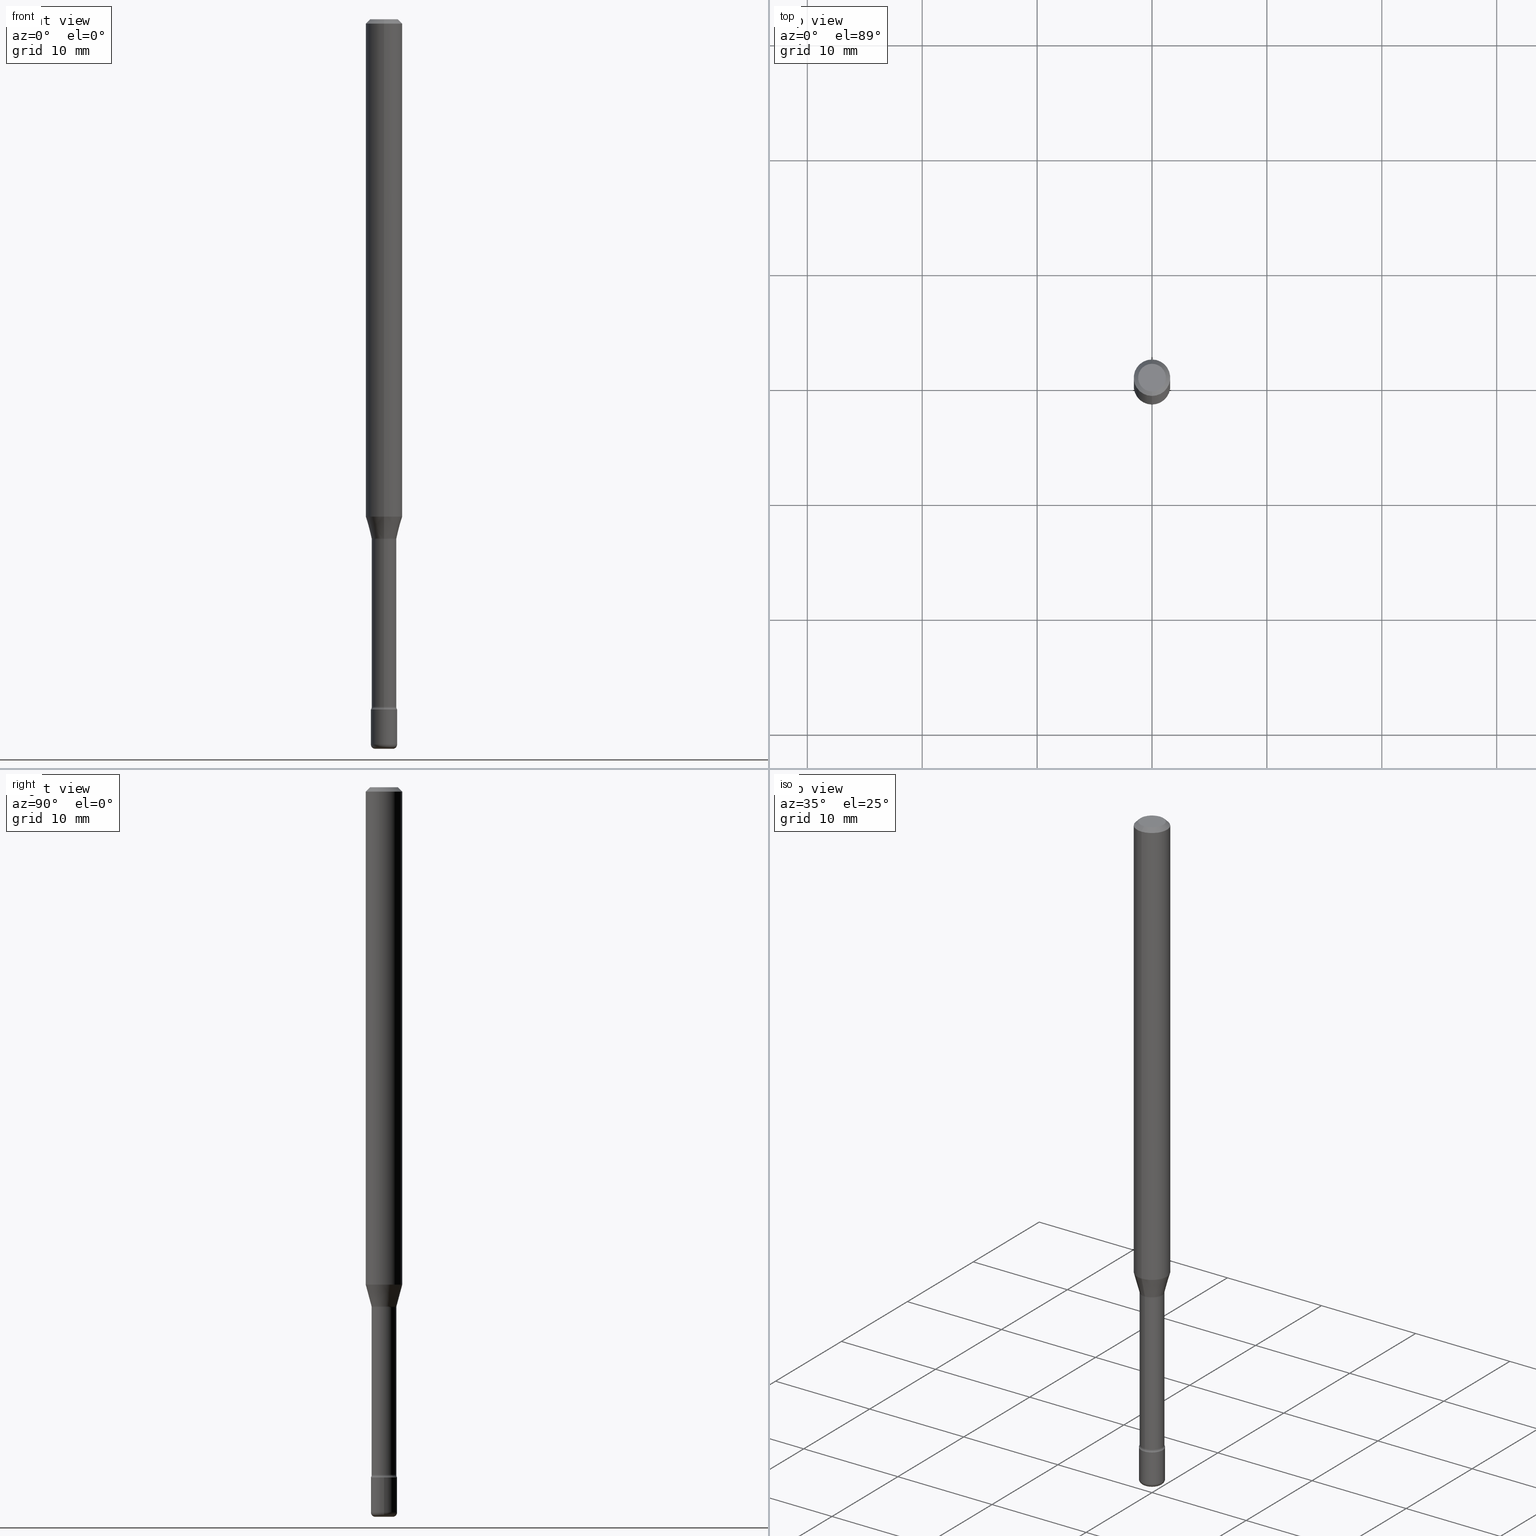
[diagram: canonical four-view strip — front | top / right | iso, engineering-drawing reading convention]
A machine part, canonical four-view strip (front | top / right | iso — engineering-drawing reading convention). The complete STEP part file that produces these views, byte-faithful:
ISO-10303-21;
HEADER;
FILE_DESCRIPTION (( 'STEP AP203' ),
    '1' );
FILE_NAME ('08855.STEP',
    '2024-03-06T20:06:03',
    ( '' ),
    ( '' ),
    'SwSTEP 2.0',
    'SolidWorks 2023',
    '' );
FILE_SCHEMA (( 'CONFIG_CONTROL_DESIGN' ));
ENDSEC;

DATA;
#1 = CARTESIAN_POINT ( 'NONE',  ( -4.364351673553912750E-16, -0.06250000000000005551, -0.01499999999999981036 ) ) ;
#2 = PRODUCT_DEFINITION ( 'UNKNOWN', '', #264, #32 ) ;
#3 = EDGE_LOOP ( 'NONE', ( #432, #184, #14, #351 ) ) ;
#4 = CIRCLE ( 'NONE', #161, 0.04281111260566398957 ) ;
#5 = ORIENTED_EDGE ( 'NONE', *, *, #429, .T. ) ;
#6 = CARTESIAN_POINT ( 'NONE',  ( 0.000000000000000000, 0.000000000000000000, 0.000000000000000000 ) ) ;
#7 = DIRECTION ( 'NONE',  ( -6.982962677686265133E-15, -1.000000000000000000, 3.491562882129239866E-15 ) ) ;
#8 = ORIENTED_EDGE ( 'NONE', *, *, #134, .F. ) ;
#9 = FACE_OUTER_BOUND ( 'NONE', #570, .T. ) ;
#10 = CYLINDRICAL_SURFACE ( 'NONE', #326, 0.04230000000000001120 ) ;
#11 = VECTOR ( 'NONE', #155, 39.37007874015748143 ) ;
#12 = CIRCLE ( 'NONE', #235, 0.01500000000000040364 ) ;
#13 = ADVANCED_FACE ( 'NONE', ( #154 ), #329, .T. ) ;
#14 = ORIENTED_EDGE ( 'NONE', *, *, #557, .T. ) ;
#15 = DIRECTION ( 'NONE',  ( -6.982962677686265133E-15, -1.000000000000000000, 3.491562882129241838E-15 ) ) ;
#16 = COORDINATED_UNIVERSAL_TIME_OFFSET ( 5, 0, .BEHIND. ) ;
#17 = DIRECTION ( 'NONE',  ( -2.445411864812793917E-29, 3.491562882129241838E-15, 1.000000000000000000 ) ) ;
#18 = DIRECTION ( 'NONE',  ( 1.839019923739602287E-15, 0.2588190451025252359, 0.9659258262890670910 ) ) ;
#19 = DIRECTION ( 'NONE',  ( -2.445411864812793917E-29, 3.491562882129241838E-15, 1.000000000000000000 ) ) ;
#20 = CARTESIAN_POINT ( 'NONE',  ( 5.783533726627847872E-29, -8.257353366364040046E-15, -2.365000000000000213 ) ) ;
#21 = AXIS2_PLACEMENT_3D ( 'NONE', #25, #546, #210 ) ;
#22 = VECTOR ( 'NONE', #463, 39.37007874015748854 ) ;
#23 = LENGTH_MEASURE_WITH_UNIT ( LENGTH_MEASURE( 0.02539999999999999897 ), #501 );
#24 = DIRECTION ( 'NONE',  ( -6.982962677686265922E-15, -1.000000000000000000, 3.491562882129242627E-15 ) ) ;
#25 = CARTESIAN_POINT ( 'NONE',  ( 4.348168500605261643E-29, -6.208321780232765587E-15, -1.778092501787273294 ) ) ;
#26 = ADVANCED_FACE ( 'NONE', ( #226 ), #361, .F. ) ;
#27 = DIRECTION ( 'NONE',  ( -2.445468806185136597E-29, 3.491481338843145583E-15, 1.000000000000000000 ) ) ;
#28 = CARTESIAN_POINT ( 'NONE',  ( 5.783399060282257641E-29, -8.257546216235657656E-15, -2.365000000000000213 ) ) ;
#29 = EDGE_CURVE ( 'NONE', #31, #567, #513, .T. ) ;
#30 = CIRCLE ( 'NONE', #188, 0.04500000000000000527 ) ;
#31 = VERTEX_POINT ( 'NONE', #562 ) ;
#32 = DESIGN_CONTEXT ( 'detailed design', #214, 'design' ) ;
#33 = DIRECTION ( 'NONE',  ( -6.982962677686265922E-15, -1.000000000000000000, 4.370956789862821150E-15 ) ) ;
#34 = DIRECTION ( 'NONE',  ( -6.982962677686265922E-15, -1.000000000000000000, 3.483106191921935554E-15 ) ) ;
#35 = ORIENTED_EDGE ( 'NONE', *, *, #144, .F. ) ;
#36 = DIRECTION ( 'NONE',  ( -2.445468806185136597E-29, 3.491481338843145583E-15, 1.000000000000000000 ) ) ;
#37 =( GEOMETRIC_REPRESENTATION_CONTEXT ( 3 ) GLOBAL_UNCERTAINTY_ASSIGNED_CONTEXT ( ( #78 ) ) GLOBAL_UNIT_ASSIGNED_CONTEXT ( ( #116, #159, #209 ) ) REPRESENTATION_CONTEXT ( 'NONE', 'WORKASPACE' ) );
#38 = AXIS2_PLACEMENT_3D ( 'NONE', #124, #303, #79 ) ;
#39 = LOCAL_TIME ( 15, 6, 3.000000000000000000, #540 ) ;
#40 = EDGE_LOOP ( 'NONE', ( #83, #522, #200, #194 ) ) ;
#41 = ORIENTED_EDGE ( 'NONE', *, *, #356, .T. ) ;
#42 = DIRECTION ( 'NONE',  ( -6.982962677686265922E-15, -1.000000000000000000, 3.491562882129242627E-15 ) ) ;
#43 = DIRECTION ( 'NONE',  ( -2.445411864812793917E-29, 3.491562882129241838E-15, 1.000000000000000000 ) ) ;
#44 = ORIENTED_EDGE ( 'NONE', *, *, #276, .T. ) ;
#45 = ADVANCED_FACE ( 'NONE', ( #182 ), #176, .T. ) ;
#46 = DIRECTION ( 'NONE',  ( 1.000000000000000000, -6.982962677686245411E-15, 0.000000000000000000 ) ) ;
#47 = CIRCLE ( 'NONE', #436, 0.04500000000000000527 ) ;
#48 = ORIENTED_EDGE ( 'NONE', *, *, #121, .F. ) ;
#49 = LINE ( 'NONE', #530, #256 ) ;
#50 = VERTEX_POINT ( 'NONE', #139 ) ;
#51 = ORIENTED_EDGE ( 'NONE', *, *, #97, .T. ) ;
#52 = EDGE_CURVE ( 'NONE', #402, #95, #295, .T. ) ;
#53 = DIRECTION ( 'NONE',  ( -6.982962677686265922E-15, -1.000000000000000000, 3.491562882129241838E-15 ) ) ;
#54 = FACE_OUTER_BOUND ( 'NONE', #215, .T. ) ;
#55 = AXIS2_PLACEMENT_3D ( 'NONE', #500, #71, #550 ) ;
#56 = COORDINATED_UNIVERSAL_TIME_OFFSET ( 5, 0, .BEHIND. ) ;
#57 = CIRCLE ( 'NONE', #360, 0.04499999999999999833 ) ;
#58 = ORIENTED_EDGE ( 'NONE', *, *, #547, .F. ) ;
#59 = DIRECTION ( 'NONE',  ( 1.000000000000000000, 0.000000000000000000, 0.000000000000000000 ) ) ;
#60 = DIRECTION ( 'NONE',  ( -6.982962677686265922E-15, -1.000000000000000000, 4.370956789862821150E-15 ) ) ;
#61 = DIRECTION ( 'NONE',  ( -2.445411864812793917E-29, 3.491562882129241838E-15, 1.000000000000000000 ) ) ;
#62 = DIRECTION ( 'NONE',  ( -2.445468806185136597E-29, 3.491481338843145583E-15, 1.000000000000000000 ) ) ;
#63 = CARTESIAN_POINT ( 'NONE',  ( -1.169113584055446105E-44, 1.669184350826100908E-30, 4.780733988912460139E-16 ) ) ;
#64 = PERSON_AND_ORGANIZATION ( #344, #152 ) ;
#65 = EDGE_CURVE ( 'NONE', #409, #50, #47, .T. ) ;
#66 = AXIS2_PLACEMENT_3D ( 'NONE', #274, #447, #271 ) ;
#67 = FACE_OUTER_BOUND ( 'NONE', #279, .T. ) ;
#68 = AXIS2_PLACEMENT_3D ( 'NONE', #261, #355, #170 ) ;
#69 = VECTOR ( 'NONE', #253, 39.37007874015748143 ) ;
#70 = CC_DESIGN_DATE_AND_TIME_ASSIGNMENT ( #498, #248, ( #293 ) ) ;
#71 = DIRECTION ( 'NONE',  ( 2.445411864812793637E-29, -3.491562882129241838E-15, -1.000000000000000000 ) ) ;
#72 = CARTESIAN_POINT ( 'NONE',  ( 6.076989983370064174E-29, -8.676331127025216680E-15, -2.484999999999999876 ) ) ;
#73 = EDGE_CURVE ( 'NONE', #77, #370, #110, .T. ) ;
#74 = DIRECTION ( 'NONE',  ( -6.982962677686265922E-15, -1.000000000000000000, 3.491562882129241838E-15 ) ) ;
#75 = FACE_OUTER_BOUND ( 'NONE', #199, .T. ) ;
#76 = APPROVAL_STATUS ( 'not_yet_approved' ) ;
#77 = VERTEX_POINT ( 'NONE', #308 ) ;
#78 = UNCERTAINTY_MEASURE_WITH_UNIT (LENGTH_MEASURE( 1.000000000000000082E-05 ), #116, 'distance_accuracy_value', 'NONE');
#79 = DIRECTION ( 'NONE',  ( 7.105427357600998703E-15, 1.000000000000000000, 0.000000000000000000 ) ) ;
#80 = DIRECTION ( 'NONE',  ( 2.438088387897960049E-29, -3.491481338843145188E-15, -1.000000000000000000 ) ) ;
#81 = AXIS2_PLACEMENT_3D ( 'NONE', #474, #36, #217 ) ;
#82 = ORIENTED_EDGE ( 'NONE', *, *, #341, .T. ) ;
#83 = ORIENTED_EDGE ( 'NONE', *, *, #552, .F. ) ;
#84 = DIRECTION ( 'NONE',  ( -2.445411864812793917E-29, 3.491562882129241838E-15, 1.000000000000000000 ) ) ;
#85 = CARTESIAN_POINT ( 'NONE',  ( 3.668117797219197392E-31, -5.237344323193873357E-17, -0.01500000000000002720 ) ) ;
#86 = ORIENTED_EDGE ( 'NONE', *, *, #557, .F. ) ;
#87 = EDGE_CURVE ( 'NONE', #31, #473, #196, .T. ) ;
#88 = CARTESIAN_POINT ( 'NONE',  ( -0.02999999999999999542, -8.463168306297186435E-15, -2.484999999999999876 ) ) ;
#89 = CC_DESIGN_APPROVAL ( #93, ( #293 ) ) ;
#90 = VECTOR ( 'NONE', #18, 39.37007874015748143 ) ;
#91 = AXIS2_PLACEMENT_3D ( 'NONE', #442, #43, #404 ) ;
#92 = EDGE_LOOP ( 'NONE', ( #480, #41, #225, #8 ) ) ;
#93 = APPROVAL ( #76, 'UNSPECIFIED' ) ;
#94 = EDGE_LOOP ( 'NONE', ( #166, #51 ) ) ;
#95 = VERTEX_POINT ( 'NONE', #172 ) ;
#96 = EDGE_CURVE ( 'NONE', #561, #473, #265, .T. ) ;
#97 = EDGE_CURVE ( 'NONE', #222, #407, #229, .T. ) ;
#98 = CARTESIAN_POINT ( 'NONE',  ( 3.668117797219197392E-31, -5.237344323193873357E-17, -0.01500000000000002720 ) ) ;
#99 = DIRECTION ( 'NONE',  ( -6.982962677686266711E-15, -1.000000000000000000, 6.458269488567998169E-15 ) ) ;
#100 = AXIS2_PLACEMENT_3D ( 'NONE', #128, #223, #571 ) ;
#101 = AXIS2_PLACEMENT_3D ( 'NONE', #422, #251, #386 ) ;
#102 = DIRECTION ( 'NONE',  ( -2.445411864812793917E-29, 3.491562882129241838E-15, 1.000000000000000000 ) ) ;
#103 = APPROVAL ( #204, 'UNSPECIFIED' ) ;
#104 = DIRECTION ( 'NONE',  ( -6.982962677686265922E-15, -1.000000000000000000, 3.491562882129241838E-15 ) ) ;
#105 = APPLICATION_PROTOCOL_DEFINITION ( 'international standard', 'config_control_design', 1994, #214 ) ;
#106 = ORIENTED_EDGE ( 'NONE', *, *, #121, .T. ) ;
#107 = DIRECTION ( 'NONE',  ( -2.445411864812793917E-29, 3.491562882129241838E-15, 1.000000000000000000 ) ) ;
#108 = DATE_AND_TIME ( #377, #140 ) ;
#109 = LINE ( 'NONE', #468, #90 ) ;
#110 = CIRCLE ( 'NONE', #38, 0.01500000000000001853 ) ;
#111 = PERSON_AND_ORGANIZATION_ROLE ( 'creator' ) ;
#112 = DIRECTION ( 'NONE',  ( -6.982962677686266711E-15, -1.000000000000000000, 6.458269488567998169E-15 ) ) ;
#113 = DIRECTION ( 'NONE',  ( -2.445411864812793917E-29, 3.491562882129241838E-15, 1.000000000000000000 ) ) ;
#114 = APPLICATION_CONTEXT ( 'configuration controlled 3d designs of mechanical parts and assemblies' ) ;
#115 = CARTESIAN_POINT ( 'NONE',  ( 6.113672015462842613E-29, -8.728703347107864943E-15, -2.500000000000000000 ) ) ;
#116 =( CONVERSION_BASED_UNIT ( 'INCH', #23 ) LENGTH_UNIT ( ) NAMED_UNIT ( #455 ) );
#117 = APPROVAL_PERSON_ORGANIZATION ( #421, #93, #389 ) ;
#118 = CARTESIAN_POINT ( 'NONE',  ( 4.364351673553919652E-16, 0.06249999999999995143, -0.01500000000000024578 ) ) ;
#119 = AXIS2_PLACEMENT_3D ( 'NONE', #301, #470, #74 ) ;
#120 = EDGE_CURVE ( 'NONE', #396, #354, #309, .T. ) ;
#121 = EDGE_CURVE ( 'NONE', #357, #478, #517, .T. ) ;
#122 = DIRECTION ( 'NONE',  ( 1.000000000000000000, -6.982962677686237523E-15, 0.000000000000000000 ) ) ;
#123 = ORIENTED_EDGE ( 'NONE', *, *, #459, .T. ) ;
#124 = CARTESIAN_POINT ( 'NONE',  ( 4.071409875905951183E-16, 0.05729999999999178806, -2.356414547187247965 ) ) ;
#125 = FACE_OUTER_BOUND ( 'NONE', #268, .T. ) ;
#126 = ORIENTED_EDGE ( 'NONE', *, *, #29, .F. ) ;
#127 = EDGE_LOOP ( 'NONE', ( #311, #405, #132, #529 ) ) ;
#128 = CARTESIAN_POINT ( 'NONE',  ( 4.348168500605261643E-29, -6.208321780232765587E-15, -1.778092501787273294 ) ) ;
#129 = PRODUCT_RELATED_PRODUCT_CATEGORY ( 'detail', '', ( #186 ) ) ;
#130 = DIRECTION ( 'NONE',  ( -2.445411864812793917E-29, 3.491562882129241838E-15, 1.000000000000000000 ) ) ;
#131 = AXIS2_PLACEMENT_3D ( 'NONE', #296, #252, #324 ) ;
#132 = ORIENTED_EDGE ( 'NONE', *, *, #348, .F. ) ;
#133 = DIRECTION ( 'NONE',  ( -2.445468806185136597E-29, 3.491481338843145583E-15, 1.000000000000000000 ) ) ;
#134 = EDGE_CURVE ( 'NONE', #50, #407, #411, .T. ) ;
#135 = ORIENTED_EDGE ( 'NONE', *, *, #511, .T. ) ;
#136 = CARTESIAN_POINT ( 'NONE',  ( -4.287811248607203282E-16, -0.06250000000000005551, -0.01499999999999981036 ) ) ;
#137 = CC_DESIGN_PERSON_AND_ORGANIZATION_ASSIGNMENT ( #375, #452, ( #2 ) ) ;
#138 = ORIENTED_EDGE ( 'NONE', *, *, #144, .T. ) ;
#139 = CARTESIAN_POINT ( 'NONE',  ( 0.04500000000000019956, -8.990564447521098367E-15, -2.484999999999999876 ) ) ;
#140 = LOCAL_TIME ( 15, 6, 3.000000000000000000, #56 ) ;
#141 = VECTOR ( 'NONE', #238, 39.37007874015748143 ) ;
#142 = CARTESIAN_POINT ( 'NONE',  ( -3.773273898774340269E-16, -0.04750000000000000749, 1.387639230100891162E-16 ) ) ;
#143 = ORIENTED_EDGE ( 'NONE', *, *, #52, .T. ) ;
#144 = EDGE_CURVE ( 'NONE', #259, #473, #333, .T. ) ;
#145 = CARTESIAN_POINT ( 'NONE',  ( -0.02999999999999999542, -8.436063711156501822E-15, -2.500000000000000000 ) ) ;
#146 = EDGE_LOOP ( 'NONE', ( #187, #126, #392, #467 ) ) ;
#147 = DIRECTION ( 'NONE',  ( 1.000000000000000000, -6.982962677686270655E-15, 4.883557194083114022E-29 ) ) ;
#148 = CARTESIAN_POINT ( 'NONE',  ( 3.741402302838848194E-16, 0.04281111260565777926, -1.778092501787273516 ) ) ;
#149 = TOROIDAL_SURFACE ( 'NONE', #434, 0.05730000000000001759, 0.01500000000000001506 ) ;
#150 = EDGE_LOOP ( 'NONE', ( #263, #44, #363, #86 ) ) ;
#151 = DIRECTION ( 'NONE',  ( 1.000000000000000000, -6.982962677686209124E-15, 0.000000000000000000 ) ) ;
#152 = ORGANIZATION ( 'UNSPECIFIED', 'UNSPECIFIED', '' ) ;
#153 = DIRECTION ( 'NONE',  ( -6.982962677686265922E-15, -1.000000000000000000, 3.491562882129241838E-15 ) ) ;
#154 = FACE_OUTER_BOUND ( 'NONE', #40, .T. ) ;
#155 = DIRECTION ( 'NONE',  ( -2.445468806185136877E-29, 3.491481338843145188E-15, 1.000000000000000000 ) ) ;
#156 = CALENDAR_DATE ( 2024, 6, 3 ) ;
#157 = ADVANCED_FACE ( 'NONE', ( #9 ), #488, .F. ) ;
#158 = DIRECTION ( 'NONE',  ( 1.000000000000000000, -7.105427357601001070E-15, 4.926316507159325352E-29 ) ) ;
#159 =( NAMED_UNIT ( * ) PLANE_ANGLE_UNIT ( ) SI_UNIT ( $, .RADIAN. ) );
#160 = ADVANCED_FACE ( 'NONE', ( #330 ), #566, .T. ) ;
#161 = AXIS2_PLACEMENT_3D ( 'NONE', #367, #189, #487 ) ;
#162 = CALENDAR_DATE ( 2024, 6, 3 ) ;
#163 = DIRECTION ( 'NONE',  ( 1.000000000000000000, -6.982962677686266711E-15, 4.876176775795935793E-29 ) ) ;
#164 = DATE_AND_TIME ( #156, #39 ) ;
#165 = AXIS2_PLACEMENT_3D ( 'NONE', #174, #427, #298 ) ;
#166 = ORIENTED_EDGE ( 'NONE', *, *, #201, .T. ) ;
#167 = DIRECTION ( 'NONE',  ( 1.000000000000000000, -6.982962677686245411E-15, 0.000000000000000000 ) ) ;
#168 = DIRECTION ( 'NONE',  ( -6.982962677686265133E-15, -1.000000000000000000, 6.070773319253918263E-15 ) ) ;
#169 = APPROVAL_DATE_TIME ( #262, #93 ) ;
#170 = DIRECTION ( 'NONE',  ( 1.000000000000000000, -6.982962677686269077E-15, 0.000000000000000000 ) ) ;
#171 = ORIENTED_EDGE ( 'NONE', *, *, #438, .T. ) ;
#172 = CARTESIAN_POINT ( 'NONE',  ( 4.440892098501044258E-16, 0.06249999999999408112, -1.704612573687109389 ) ) ;
#173 = CC_DESIGN_APPROVAL ( #368, ( #264 ) ) ;
#174 = CARTESIAN_POINT ( 'NONE',  ( 5.783399060282257641E-29, -8.257546216235657656E-15, -2.365000000000000213 ) ) ;
#175 = ADVANCED_FACE ( 'NONE', ( #543 ), #414, .T. ) ;
#176 = CONICAL_SURFACE ( 'NONE', #464, 0.06250000000000000000, 0.7853981633974480570 ) ;
#177 = CIRCLE ( 'NONE', #564, 0.02999999999999999542 ) ;
#178 = ORIENTED_EDGE ( 'NONE', *, *, #528, .F. ) ;
#179 = DIRECTION ( 'NONE',  ( -6.982962677686267499E-15, -1.000000000000000000, 0.000000000000000000 ) ) ;
#180 = CC_DESIGN_DATE_AND_TIME_ASSIGNMENT ( #108, #206, ( #2 ) ) ;
#181 = ORIENTED_EDGE ( 'NONE', *, *, #304, .F. ) ;
#182 = FACE_OUTER_BOUND ( 'NONE', #190, .T. ) ;
#183 = ADVANCED_FACE ( 'NONE', ( #536 ), #514, .T. ) ;
#184 = ORIENTED_EDGE ( 'NONE', *, *, #358, .T. ) ;
#185 = EDGE_CURVE ( 'NONE', #259, #535, #345, .T. ) ;
#186 = PRODUCT ( '08855', '08855', '', ( #198 ) ) ;
#187 = ORIENTED_EDGE ( 'NONE', *, *, #193, .F. ) ;
#188 = AXIS2_PLACEMENT_3D ( 'NONE', #394, #278, #46 ) ;
#189 = DIRECTION ( 'NONE',  ( -2.445411864812793917E-29, 3.491562882129241838E-15, 1.000000000000000000 ) ) ;
#190 = EDGE_LOOP ( 'NONE', ( #48, #285, #228, #171 ) ) ;
#191 = DIRECTION ( 'NONE',  ( -6.982962677686266711E-15, -1.000000000000000000, 3.491481338843145583E-15 ) ) ;
#192 = DIRECTION ( 'NONE',  ( -2.445468806185136597E-29, 3.491481338843145583E-15, 1.000000000000000000 ) ) ;
#193 = EDGE_CURVE ( 'NONE', #567, #561, #317, .T. ) ;
#194 = ORIENTED_EDGE ( 'NONE', *, *, #438, .F. ) ;
#195 = DIRECTION ( 'NONE',  ( -2.445411864812793917E-29, 3.491562882129241838E-15, 1.000000000000000000 ) ) ;
#196 = CIRCLE ( 'NONE', #504, 0.01500000000000002720 ) ;
#197 = TOROIDAL_SURFACE ( 'NONE', #267, 0.02999999999999999542, 0.01500000000000040364 ) ;
#198 = MECHANICAL_CONTEXT ( 'NONE', #114, 'mechanical' ) ;
#199 = EDGE_LOOP ( 'NONE', ( #123, #398 ) ) ;
#200 = ORIENTED_EDGE ( 'NONE', *, *, #528, .T. ) ;
#201 = EDGE_CURVE ( 'NONE', #407, #222, #57, .T. ) ;
#202 = CARTESIAN_POINT ( 'NONE',  ( -2.953793212660856168E-16, -0.04230000000000624233, -1.781974787463810994 ) ) ;
#203 = DIRECTION ( 'NONE',  ( -2.445411864812793637E-29, 3.491562882129241838E-15, 1.000000000000000000 ) ) ;
#204 = APPROVAL_STATUS ( 'not_yet_approved' ) ;
#205 = CARTESIAN_POINT ( 'NONE',  ( 3.668117797219197392E-31, -5.237344323193873357E-17, -0.01500000000000002720 ) ) ;
#206 = DATE_TIME_ROLE ( 'creation_date' ) ;
#207 = VECTOR ( 'NONE', #61, 39.37007874015748143 ) ;
#208 = AXIS2_PLACEMENT_3D ( 'NONE', #496, #158, #299 ) ;
#209 =( NAMED_UNIT ( * ) SI_UNIT ( $, .STERADIAN. ) SOLID_ANGLE_UNIT ( ) );
#210 = DIRECTION ( 'NONE',  ( -6.982962677686265133E-15, -1.000000000000000000, 6.381165607227957288E-15 ) ) ;
#211 = AXIS2_PLACEMENT_3D ( 'NONE', #85, #219, #34 ) ;
#212 = ORIENTED_EDGE ( 'NONE', *, *, #552, .T. ) ;
#213 = CARTESIAN_POINT ( 'NONE',  ( -2.989484015155321567E-16, -0.04281111260567019294, -1.778092501787273072 ) ) ;
#214 = APPLICATION_CONTEXT ( 'configuration controlled 3d designs of mechanical parts and assemblies' ) ;
#215 = EDGE_LOOP ( 'NONE', ( #260, #490, #138, #509 ) ) ;
#216 = ORIENTED_EDGE ( 'NONE', *, *, #300, .F. ) ;
#217 = DIRECTION ( 'NONE',  ( 1.000000000000000000, -6.982962677686237523E-15, 0.000000000000000000 ) ) ;
#218 = CIRCLE ( 'NONE', #479, 0.06250000000000000000 ) ;
#219 = DIRECTION ( 'NONE',  ( -2.445411864812793917E-29, 3.491562882129241838E-15, 1.000000000000000000 ) ) ;
#220 = AXIS2_PLACEMENT_3D ( 'NONE', #313, #84, #33 ) ;
#221 = LOCAL_TIME ( 15, 6, 3.000000000000000000, #544 ) ;
#222 = VERTEX_POINT ( 'NONE', #336 ) ;
#223 = DIRECTION ( 'NONE',  ( -2.445411864812793917E-29, 3.491562882129241838E-15, 1.000000000000000000 ) ) ;
#224 = ADVANCED_FACE ( 'NONE', ( #340 ), #548, .T. ) ;
#225 = ORIENTED_EDGE ( 'NONE', *, *, #201, .F. ) ;
#226 = FACE_OUTER_BOUND ( 'NONE', #418, .T. ) ;
#227 = DIRECTION ( 'NONE',  ( -6.982962677686265922E-15, -1.000000000000000000, 3.483106191921935554E-15 ) ) ;
#228 = ORIENTED_EDGE ( 'NONE', *, *, #242, .T. ) ;
#229 = CIRCLE ( 'NONE', #68, 0.04499999999999999833 ) ;
#230 = CARTESIAN_POINT ( 'NONE',  ( -0.04500000000000019956, -8.356586895933170524E-15, -2.484999999999999876 ) ) ;
#231 = EDGE_CURVE ( 'NONE', #95, #402, #542, .T. ) ;
#232 = CARTESIAN_POINT ( 'NONE',  ( 5.762404092109162712E-29, -8.227569567868378496E-15, -2.356414547187247521 ) ) ;
#233 = FACE_OUTER_BOUND ( 'NONE', #94, .T. ) ;
#234 = ORIENTED_EDGE ( 'NONE', *, *, #341, .F. ) ;
#235 = AXIS2_PLACEMENT_3D ( 'NONE', #327, #191, #151 ) ;
#236 = CARTESIAN_POINT ( 'NONE',  ( 4.440892098501046230E-16, 0.06249999999999995143, -0.01500000000000024578 ) ) ;
#237 = AXIS2_PLACEMENT_3D ( 'NONE', #28, #555, #168 ) ;
#238 = DIRECTION ( 'NONE',  ( -4.851104656540962697E-15, -0.7071067811865497932, -0.7071067811865452413 ) ) ;
#239 = APPROVAL_STATUS ( 'not_yet_approved' ) ;
#240 = CYLINDRICAL_SURFACE ( 'NONE', #446, 0.06250000000000000000 ) ;
#241 = ORIENTED_EDGE ( 'NONE', *, *, #569, .T. ) ;
#242 = EDGE_CURVE ( 'NONE', #270, #443, #376, .T. ) ;
#243 = DIRECTION ( 'NONE',  ( -2.445411864812793917E-29, 3.491562882129241838E-15, 1.000000000000000000 ) ) ;
#244 = DIRECTION ( 'NONE',  ( 4.937700262164546464E-15, 0.7071067811865449082, -0.7071067811865501263 ) ) ;
#245 = DATE_AND_TIME ( #537, #420 ) ;
#246 = CARTESIAN_POINT ( 'NONE',  ( 4.357662288061261093E-29, -6.221877024798788192E-15, -1.781974787463811216 ) ) ;
#247 = DIRECTION ( 'NONE',  ( -2.445411864812793917E-29, 3.491562882129241838E-15, 1.000000000000000000 ) ) ;
#248 = DATE_TIME_ROLE ( 'classification_date' ) ;
#249 = CC_DESIGN_PERSON_AND_ORGANIZATION_ASSIGNMENT ( #64, #495, ( #264 ) ) ;
#250 = CC_DESIGN_SECURITY_CLASSIFICATION ( #293, ( #264 ) ) ;
#251 = DIRECTION ( 'NONE',  ( -1.000000000000000000, 6.982962677686265922E-15, -4.883557194083112340E-29 ) ) ;
#252 = DIRECTION ( 'NONE',  ( -2.445411864812793917E-29, 3.491562882129241838E-15, 1.000000000000000000 ) ) ;
#253 = DIRECTION ( 'NONE',  ( -2.445411864812793917E-29, 3.491562882129241838E-15, 1.000000000000000000 ) ) ;
#254 = CARTESIAN_POINT ( 'NONE',  ( 4.357662288061261093E-29, -6.221877024798788192E-15, -1.781974787463811216 ) ) ;
#255 = CLOSED_SHELL ( 'NONE', ( #224, #433, #383, #559, #347, #426 ) ) ;
#256 = VECTOR ( 'NONE', #322, 39.37007874015748143 ) ;
#257 = CARTESIAN_POINT ( 'NONE',  ( 6.076989983370064174E-29, -8.676331127025216680E-15, -2.484999999999999876 ) ) ;
#258 = ORIENTED_EDGE ( 'NONE', *, *, #364, .F. ) ;
#259 = VERTEX_POINT ( 'NONE', #539 ) ;
#260 = ORIENTED_EDGE ( 'NONE', *, *, #511, .F. ) ;
#261 = CARTESIAN_POINT ( 'NONE',  ( 5.783533726627847872E-29, -8.257353366364040046E-15, -2.365000000000000213 ) ) ;
#262 = DATE_AND_TIME ( #306, #465 ) ;
#263 = ORIENTED_EDGE ( 'NONE', *, *, #29, .T. ) ;
#264 = PRODUCT_DEFINITION_FORMATION_WITH_SPECIFIED_SOURCE ( 'ANY', '', #186, .NOT_KNOWN. ) ;
#265 = CIRCLE ( 'NONE', #352, 0.04230000000000001814 ) ;
#266 = CARTESIAN_POINT ( 'NONE',  ( 3.005595772265223596E-16, 0.04230000000000001120, 3.303802889771791252E-16 ) ) ;
#267 = AXIS2_PLACEMENT_3D ( 'NONE', #526, #277, #147 ) ;
#268 = EDGE_LOOP ( 'NONE', ( #572, #58 ) ) ;
#269 = PRODUCT_DEFINITION_SHAPE ( 'NONE', 'NONE',  #2 ) ;
#270 = VERTEX_POINT ( 'NONE', #499 ) ;
#271 = DIRECTION ( 'NONE',  ( 1.000000000000000000, -6.982962677686265922E-15, 4.876176775795935793E-29 ) ) ;
#272 = CARTESIAN_POINT ( 'NONE',  ( 5.762404092109162712E-29, -8.227569567868378496E-15, -2.356414547187247521 ) ) ;
#273 = APPROVAL_PERSON_ORGANIZATION ( #335, #103, #461 ) ;
#274 = CARTESIAN_POINT ( 'NONE',  ( 5.783533726627847872E-29, -8.257353366364040046E-15, -2.365000000000000213 ) ) ;
#275 = ORIENTED_EDGE ( 'NONE', *, *, #193, .T. ) ;
#276 = EDGE_CURVE ( 'NONE', #567, #95, #109, .T. ) ;
#277 = DIRECTION ( 'NONE',  ( -2.445468806185136597E-29, 3.491481338843145583E-15, 1.000000000000000000 ) ) ;
#278 = DIRECTION ( 'NONE',  ( -2.445468806185136597E-29, 3.491481338843145583E-15, 1.000000000000000000 ) ) ;
#279 = EDGE_LOOP ( 'NONE', ( #143, #212, #181, #178 ) ) ;
#280 = DIRECTION ( 'NONE',  ( 6.982962677686265922E-15, 1.000000000000000000, -3.483106191921935554E-15 ) ) ;
#281 = CARTESIAN_POINT ( 'NONE',  ( 0.04499999999999999833, -8.571586686859921733E-15, -2.365000000000000213 ) ) ;
#282 = EDGE_CURVE ( 'NONE', #473, #561, #532, .T. ) ;
#283 = ORIENTED_EDGE ( 'NONE', *, *, #96, .T. ) ;
#284 = AXIS2_PLACEMENT_3D ( 'NONE', #88, #395, #439 ) ;
#285 = ORIENTED_EDGE ( 'NONE', *, *, #459, .F. ) ;
#286 = CLOSED_SHELL ( 'NONE', ( #321, #175, #457, #160, #294, #183, #477, #13, #45, #538, #26, #157, #425, #441 ) ) ;
#287 = AXIS2_PLACEMENT_3D ( 'NONE', #257, #133, #527 ) ;
#288 = SECURITY_CLASSIFICATION_LEVEL ( 'unclassified' ) ;
#289 = CARTESIAN_POINT ( 'NONE',  ( 0.04499999999999999833, -3.142333204958819823E-16, 2.194279549108170967E-30 ) ) ;
#290 = APPROVAL_DATE_TIME ( #164, #103 ) ;
#291 = PERSON_AND_ORGANIZATION_ROLE ( 'design_owner' ) ;
#292 = DIRECTION ( 'NONE',  ( -2.445468806185136597E-29, 3.491481338843145583E-15, 1.000000000000000000 ) ) ;
#293 = SECURITY_CLASSIFICATION ( '', '', #288 ) ;
#294 = ADVANCED_FACE ( 'NONE', ( #67 ), #240, .T. ) ;
#295 = CIRCLE ( 'NONE', #220, 0.06250000000000000000 ) ;
#296 = CARTESIAN_POINT ( 'NONE',  ( 6.620752579593885833E-46, -9.460906030875025688E-32, -2.708531389104991304E-17 ) ) ;
#297 = AXIS2_PLACEMENT_3D ( 'NONE', #451, #195, #15 ) ;
#298 = DIRECTION ( 'NONE',  ( -6.982962677686265133E-15, -1.000000000000000000, 6.070773319253918263E-15 ) ) ;
#299 = DIRECTION ( 'NONE',  ( 7.105427357601001859E-15, 1.000000000000000000, 0.000000000000000000 ) ) ;
#300 = EDGE_CURVE ( 'NONE', #357, #270, #413, .T. ) ;
#301 = CARTESIAN_POINT ( 'NONE',  ( 4.357763756151139053E-29, -6.221731716718877342E-15, -1.781974787463811216 ) ) ;
#302 = CARTESIAN_POINT ( 'NONE',  ( 4.440892098500625669E-16, 0.06250000000000000000, 2.598507187581684484E-16 ) ) ;
#303 = DIRECTION ( 'NONE',  ( 1.000000000000000000, -7.105427357601001070E-15, 4.926316507159325352E-29 ) ) ;
#304 = EDGE_CURVE ( 'NONE', #478, #443, #406, .T. ) ;
#305 = PLANE ( 'NONE',  #387 ) ;
#306 = CALENDAR_DATE ( 2024, 6, 3 ) ;
#307 = ORIENTED_EDGE ( 'NONE', *, *, #569, .F. ) ;
#308 = CARTESIAN_POINT ( 'NONE',  ( 3.101519041593414751E-16, 0.04229999999999176780, -2.356414547187247965 ) ) ;
#309 = CIRCLE ( 'NONE', #81, 0.02999999999999999542 ) ;
#310 = ORIENTED_EDGE ( 'NONE', *, *, #519, .F. ) ;
#311 = ORIENTED_EDGE ( 'NONE', *, *, #120, .T. ) ;
#312 = MANIFOLD_SOLID_BREP ( 'Body-Move/Copy2[2]', #286 ) ;
#313 = CARTESIAN_POINT ( 'NONE',  ( 4.168479812603529288E-29, -5.951761990696707691E-15, -1.704612573687109167 ) ) ;
#314 = EDGE_LOOP ( 'NONE', ( #403, #275, #283, #475 ) ) ;
#315 = TOROIDAL_SURFACE ( 'NONE', #323, 0.05730000000000001065, 0.01500000000000002720 ) ;
#316 = ADVANCED_BREP_SHAPE_REPRESENTATION ( '08855', ( #485, #312, #400 ), #37 ) ;
#317 = CIRCLE ( 'NONE', #208, 0.01500000000000002720 ) ;
#318 = ORIENTED_EDGE ( 'NONE', *, *, #73, .F. ) ;
#319 = CC_DESIGN_PERSON_AND_ORGANIZATION_ASSIGNMENT ( #339, #111, ( #264 ) ) ;
#320 = FACE_OUTER_BOUND ( 'NONE', #428, .T. ) ;
#321 = ADVANCED_FACE ( 'NONE', ( #388 ), #419, .F. ) ;
#322 = DIRECTION ( 'NONE',  ( -2.445468806185136877E-29, 3.491481338843145188E-15, 1.000000000000000000 ) ) ;
#323 = AXIS2_PLACEMENT_3D ( 'NONE', #372, #534, #153 ) ;
#324 = DIRECTION ( 'NONE',  ( -6.982962677686265133E-15, -1.000000000000000000, 3.491562882129241838E-15 ) ) ;
#325 = AXIS2_PLACEMENT_3D ( 'NONE', #63, #247, #374 ) ;
#326 = AXIS2_PLACEMENT_3D ( 'NONE', #408, #491, #7 ) ;
#327 = CARTESIAN_POINT ( 'NONE',  ( 0.02999999999999999542, -8.885820007355803419E-15, -2.484999999999999876 ) ) ;
#328 = CARTESIAN_POINT ( 'NONE',  ( 5.762538269587286723E-29, -8.227377418082795508E-15, -2.356414547187247521 ) ) ;
#329 = CYLINDRICAL_SURFACE ( 'NONE', #379, 0.06250000000000000000 ) ;
#330 = FACE_OUTER_BOUND ( 'NONE', #440, .T. ) ;
#331 = DIRECTION ( 'NONE',  ( 0.000000000000000000, 0.000000000000000000, 1.000000000000000000 ) ) ;
#332 = DIRECTION ( 'NONE',  ( -2.445411864812793917E-29, 3.491562882129241838E-15, 1.000000000000000000 ) ) ;
#333 = LINE ( 'NONE', #458, #207 ) ;
#334 = CIRCLE ( 'NONE', #165, 0.04499999999999999833 ) ;
#335 = PERSON_AND_ORGANIZATION ( #344, #152 ) ;
#336 = CARTESIAN_POINT ( 'NONE',  ( -0.04499999999999999833, -8.147098015602583784E-15, -2.365000000000000213 ) ) ;
#337 = EDGE_CURVE ( 'NONE', #370, #535, #334, .T. ) ;
#338 = CARTESIAN_POINT ( 'NONE',  ( 5.762538269587286723E-29, -8.227377418082795508E-15, -2.356414547187247521 ) ) ;
#339 = PERSON_AND_ORGANIZATION ( #344, #152 ) ;
#340 = FACE_OUTER_BOUND ( 'NONE', #92, .T. ) ;
#341 = EDGE_CURVE ( 'NONE', #535, #370, #481, .T. ) ;
#342 = PLANE ( 'NONE',  #55 ) ;
#343 = CC_DESIGN_PERSON_AND_ORGANIZATION_ASSIGNMENT ( #384, #291, ( #186 ) ) ;
#344 = PERSON ( 'UNSPECIFIED', 'UNSPECIFIED', 'UNSPECIFIED', ('UNSPECIFIED'), ('UNSPECIFIED'), ('UNSPECIFIED') ) ;
#345 = CIRCLE ( 'NONE', #101, 0.01500000000000001853 ) ;
#346 = CONICAL_SURFACE ( 'NONE', #91, 0.04281111260566398957, 0.2617993877991505736 ) ;
#347 = ADVANCED_FACE ( 'NONE', ( #349 ), #523, .T. ) ;
#348 = EDGE_CURVE ( 'NONE', #50, #409, #30, .T. ) ;
#349 = FACE_OUTER_BOUND ( 'NONE', #516, .T. ) ;
#350 = LINE ( 'NONE', #302, #69 ) ;
#351 = ORIENTED_EDGE ( 'NONE', *, *, #231, .F. ) ;
#352 = AXIS2_PLACEMENT_3D ( 'NONE', #254, #390, #558 ) ;
#353 = SHAPE_DEFINITION_REPRESENTATION ( #269, #316 ) ;
#354 = VERTEX_POINT ( 'NONE', #145 ) ;
#355 = DIRECTION ( 'NONE',  ( -2.445468806185136597E-29, 3.491481338843145583E-15, 1.000000000000000000 ) ) ;
#356 = EDGE_CURVE ( 'NONE', #409, #222, #49, .T. ) ;
#357 = VERTEX_POINT ( 'NONE', #142 ) ;
#358 = EDGE_CURVE ( 'NONE', #567, #31, #4, .T. ) ;
#359 = ORIENTED_EDGE ( 'NONE', *, *, #337, .T. ) ;
#360 = AXIS2_PLACEMENT_3D ( 'NONE', #20, #502, #378 ) ;
#361 = PLANE ( 'NONE',  #541 ) ;
#362 = DIRECTION ( 'NONE',  ( -2.445411864812793917E-29, 3.491562882129241838E-15, 1.000000000000000000 ) ) ;
#363 = ORIENTED_EDGE ( 'NONE', *, *, #52, .F. ) ;
#364 = EDGE_CURVE ( 'NONE', #77, #259, #472, .T. ) ;
#365 = FACE_OUTER_BOUND ( 'NONE', #127, .T. ) ;
#366 = ORIENTED_EDGE ( 'NONE', *, *, #337, .F. ) ;
#367 = CARTESIAN_POINT ( 'NONE',  ( 4.348168500605261643E-29, -6.208321780232765587E-15, -1.778092501787273294 ) ) ;
#368 = APPROVAL ( #239, 'UNSPECIFIED' ) ;
#369 = AXIS2_PLACEMENT_3D ( 'NONE', #205, #380, #280 ) ;
#370 = VERTEX_POINT ( 'NONE', #444 ) ;
#371 = CIRCLE ( 'NONE', #489, 0.04229999999999999732 ) ;
#372 = CARTESIAN_POINT ( 'NONE',  ( 4.357763756151139053E-29, -6.221731716718877342E-15, -1.781974787463811216 ) ) ;
#373 = ORIENTED_EDGE ( 'NONE', *, *, #282, .F. ) ;
#374 = DIRECTION ( 'NONE',  ( -6.982962677686265133E-15, -1.000000000000000000, 3.491562882129239866E-15 ) ) ;
#375 = PERSON_AND_ORGANIZATION ( #344, #152 ) ;
#376 = LINE ( 'NONE', #118, #445 ) ;
#377 = CALENDAR_DATE ( 2024, 6, 3 ) ;
#378 = DIRECTION ( 'NONE',  ( 1.000000000000000000, -6.982962677686269077E-15, 0.000000000000000000 ) ) ;
#379 = AXIS2_PLACEMENT_3D ( 'NONE', #494, #107, #42 ) ;
#380 = DIRECTION ( 'NONE',  ( 2.445411864812793917E-29, -3.491562882129241838E-15, -1.000000000000000000 ) ) ;
#381 = AXIS2_PLACEMENT_3D ( 'NONE', #424, #332, #60 ) ;
#382 = PERSON_AND_ORGANIZATION ( #344, #152 ) ;
#383 = ADVANCED_FACE ( 'NONE', ( #233 ), #482, .T. ) ;
#384 = PERSON_AND_ORGANIZATION ( #344, #152 ) ;
#385 = EDGE_LOOP ( 'NONE', ( #258, #448, #359, #393 ) ) ;
#386 = DIRECTION ( 'NONE',  ( -6.982962677686263555E-15, -1.000000000000000000, 0.000000000000000000 ) ) ;
#387 = AXIS2_PLACEMENT_3D ( 'NONE', #471, #80, #391 ) ;
#388 = FACE_OUTER_BOUND ( 'NONE', #314, .T. ) ;
#389 = APPROVAL_ROLE ( '' ) ;
#390 = DIRECTION ( 'NONE',  ( -2.445411864812793917E-29, 3.491562882129241838E-15, 1.000000000000000000 ) ) ;
#391 = DIRECTION ( 'NONE',  ( -1.000000000000000000, 6.982962677686265922E-15, -4.876176775795935793E-29 ) ) ;
#392 = ORIENTED_EDGE ( 'NONE', *, *, #87, .T. ) ;
#393 = ORIENTED_EDGE ( 'NONE', *, *, #185, .F. ) ;
#394 = CARTESIAN_POINT ( 'NONE',  ( 6.076989983370064174E-29, -8.676331127025216680E-15, -2.484999999999999876 ) ) ;
#395 = DIRECTION ( 'NONE',  ( 7.105427357601001859E-15, 1.000000000000000000, -3.491481338843145583E-15 ) ) ;
#396 = VERTEX_POINT ( 'NONE', #525 ) ;
#397 = VECTOR ( 'NONE', #401, 39.37007874015748143 ) ;
#398 = ORIENTED_EDGE ( 'NONE', *, *, #300, .T. ) ;
#399 = AXIS2_PLACEMENT_3D ( 'NONE', #246, #113, #462 ) ;
#400 = AXIS2_PLACEMENT_3D ( 'NONE', #466, #331, #59 ) ;
#401 = DIRECTION ( 'NONE',  ( -2.445411864812793917E-29, 3.491562882129241838E-15, 1.000000000000000000 ) ) ;
#402 = VERTEX_POINT ( 'NONE', #410 ) ;
#403 = ORIENTED_EDGE ( 'NONE', *, *, #358, .F. ) ;
#404 = DIRECTION ( 'NONE',  ( -6.982962677686265133E-15, -1.000000000000000000, 6.381165607227957288E-15 ) ) ;
#405 = ORIENTED_EDGE ( 'NONE', *, *, #519, .T. ) ;
#406 = CIRCLE ( 'NONE', #211, 0.06250000000000000000 ) ;
#407 = VERTEX_POINT ( 'NONE', #281 ) ;
#408 = CARTESIAN_POINT ( 'NONE',  ( -1.169113584055446105E-44, 1.669184350826100908E-30, 4.780733988912460139E-16 ) ) ;
#409 = VERTEX_POINT ( 'NONE', #230 ) ;
#410 = CARTESIAN_POINT ( 'NONE',  ( -4.364351673553497119E-16, -0.06250000000000591194, -1.704612573687108945 ) ) ;
#411 = LINE ( 'NONE', #289, #11 ) ;
#412 = DIRECTION ( 'NONE',  ( 1.000000000000000000, -6.982962677686266711E-15, 4.876176775795935793E-29 ) ) ;
#413 = CIRCLE ( 'NONE', #131, 0.04750000000000000749 ) ;
#414 = CYLINDRICAL_SURFACE ( 'NONE', #325, 0.04230000000000001120 ) ;
#415 = FACE_OUTER_BOUND ( 'NONE', #385, .T. ) ;
#416 = APPROVAL_ROLE ( '' ) ;
#417 = CARTESIAN_POINT ( 'NONE',  ( -1.169113584055446105E-44, 1.669184350826100908E-30, 4.780733988912460139E-16 ) ) ;
#418 = EDGE_LOOP ( 'NONE', ( #234, #366 ) ) ;
#419 = TOROIDAL_SURFACE ( 'NONE', #119, 0.05730000000000001065, 0.01500000000000002720 ) ;
#420 = LOCAL_TIME ( 15, 6, 3.000000000000000000, #16 ) ;
#421 = PERSON_AND_ORGANIZATION ( #344, #152 ) ;
#422 = CARTESIAN_POINT ( 'NONE',  ( -4.001237614313655264E-16, -0.05730000000000824711, -2.356414547187247077 ) ) ;
#423 = APPLICATION_PROTOCOL_DEFINITION ( 'international standard', 'config_control_design', 1994, #114 ) ;
#424 = CARTESIAN_POINT ( 'NONE',  ( 4.168479812603529288E-29, -5.951761990696707691E-15, -1.704612573687109167 ) ) ;
#425 = ADVANCED_FACE ( 'NONE', ( #54 ), #10, .T. ) ;
#426 = ADVANCED_FACE ( 'NONE', ( #320 ), #484, .T. ) ;
#427 = DIRECTION ( 'NONE',  ( -2.445411864812793917E-29, 3.491562882129241838E-15, 1.000000000000000000 ) ) ;
#428 = EDGE_LOOP ( 'NONE', ( #553, #450, #430, #565 ) ) ;
#429 = EDGE_CURVE ( 'NONE', #396, #50, #12, .T. ) ;
#430 = ORIENTED_EDGE ( 'NONE', *, *, #134, .T. ) ;
#431 = CARTESIAN_POINT ( 'NONE',  ( -4.364351673553916201E-16, -0.06250000000000000000, 6.962960790243237274E-16 ) ) ;
#432 = ORIENTED_EDGE ( 'NONE', *, *, #276, .F. ) ;
#433 = ADVANCED_FACE ( 'NONE', ( #365 ), #197, .T. ) ;
#434 = AXIS2_PLACEMENT_3D ( 'NONE', #328, #492, #104 ) ;
#435 = ORIENTED_EDGE ( 'NONE', *, *, #242, .F. ) ;
#436 = AXIS2_PLACEMENT_3D ( 'NONE', #72, #27, #167 ) ;
#437 = VECTOR ( 'NONE', #130, 39.37007874015748143 ) ;
#438 = EDGE_CURVE ( 'NONE', #443, #478, #218, .T. ) ;
#439 = DIRECTION ( 'NONE',  ( -1.000000000000000000, 7.105427357600993970E-15, 0.000000000000000000 ) ) ;
#440 = EDGE_LOOP ( 'NONE', ( #216, #106, #483, #435 ) ) ;
#441 = ADVANCED_FACE ( 'NONE', ( #449 ), #315, .F. ) ;
#442 = CARTESIAN_POINT ( 'NONE',  ( 4.348168500605261643E-29, -6.208321780232765587E-15, -1.778092501787273294 ) ) ;
#443 = VERTEX_POINT ( 'NONE', #236 ) ;
#444 = CARTESIAN_POINT ( 'NONE',  ( 3.197442310921029545E-16, 0.04499999999999174799, -2.365000000000000213 ) ) ;
#445 = VECTOR ( 'NONE', #244, 39.37007874015748143 ) ;
#446 = AXIS2_PLACEMENT_3D ( 'NONE', #417, #17, #24 ) ;
#447 = DIRECTION ( 'NONE',  ( -2.438088387897960049E-29, 3.491481338843145188E-15, 1.000000000000000000 ) ) ;
#448 = ORIENTED_EDGE ( 'NONE', *, *, #73, .T. ) ;
#449 = FACE_OUTER_BOUND ( 'NONE', #146, .T. ) ;
#450 = ORIENTED_EDGE ( 'NONE', *, *, #65, .T. ) ;
#451 = CARTESIAN_POINT ( 'NONE',  ( 6.620752579593885833E-46, -9.460906030875025688E-32, -2.708531389104991304E-17 ) ) ;
#452 = PERSON_AND_ORGANIZATION_ROLE ( 'creator' ) ;
#453 = APPROVAL_PERSON_ORGANIZATION ( #545, #368, #416 ) ;
#454 = AXIS2_PLACEMENT_3D ( 'NONE', #338, #19, #53 ) ;
#455 = DIMENSIONAL_EXPONENTS ( 1.000000000000000000, 0.000000000000000000, 0.000000000000000000, 0.000000000000000000, 0.000000000000000000, 0.000000000000000000, 0.000000000000000000 ) ;
#456 = PERSON_AND_ORGANIZATION_ROLE ( 'classification_officer' ) ;
#457 = ADVANCED_FACE ( 'NONE', ( #415 ), #149, .F. ) ;
#458 = CARTESIAN_POINT ( 'NONE',  ( -2.953793212661291028E-16, -0.04230000000000001120, 6.257665088053130012E-16 ) ) ;
#459 = EDGE_CURVE ( 'NONE', #270, #357, #533, .T. ) ;
#460 = CARTESIAN_POINT ( 'NONE',  ( 0.000000000000000000, 0.000000000000000000, 0.000000000000000000 ) ) ;
#461 = APPROVAL_ROLE ( '' ) ;
#462 = DIRECTION ( 'NONE',  ( -6.982962677686266711E-15, -1.000000000000000000, 6.458269488567995014E-15 ) ) ;
#463 = DIRECTION ( 'NONE',  ( -1.807323732225332111E-15, -0.2588190451025184635, 0.9659258262890689783 ) ) ;
#464 = AXIS2_PLACEMENT_3D ( 'NONE', #554, #520, #510 ) ;
#465 = LOCAL_TIME ( 15, 6, 3.000000000000000000, #556 ) ;
#466 = CARTESIAN_POINT ( 'NONE',  ( 0.000000000000000000, 0.000000000000000000, 0.000000000000000000 ) ) ;
#467 = ORIENTED_EDGE ( 'NONE', *, *, #282, .T. ) ;
#468 = CARTESIAN_POINT ( 'NONE',  ( 3.041912507176654596E-16, 0.04281111260565777926, -1.778092501787273516 ) ) ;
#469 = CARTESIAN_POINT ( 'NONE',  ( -4.001237614313795287E-16, -0.05730000000000623483, -1.781974787463810994 ) ) ;
#470 = DIRECTION ( 'NONE',  ( -2.445411864812793917E-29, 3.491562882129241838E-15, 1.000000000000000000 ) ) ;
#471 = CARTESIAN_POINT ( 'NONE',  ( 2.094888803306491085E-16, 0.02999999999999126629, -2.500000000000000000 ) ) ;
#472 = CIRCLE ( 'NONE', #549, 0.04229999999999999732 ) ;
#473 = VERTEX_POINT ( 'NONE', #202 ) ;
#474 = CARTESIAN_POINT ( 'NONE',  ( 6.113672015462842613E-29, -8.728703347107864943E-15, -2.500000000000000000 ) ) ;
#475 = ORIENTED_EDGE ( 'NONE', *, *, #87, .F. ) ;
#476 = LINE ( 'NONE', #266, #397 ) ;
#477 = ADVANCED_FACE ( 'NONE', ( #521 ), #346, .T. ) ;
#478 = VERTEX_POINT ( 'NONE', #1 ) ;
#479 = AXIS2_PLACEMENT_3D ( 'NONE', #98, #102, #227 ) ;
#480 = ORIENTED_EDGE ( 'NONE', *, *, #348, .T. ) ;
#481 = CIRCLE ( 'NONE', #237, 0.04499999999999999833 ) ;
#482 = PLANE ( 'NONE',  #66 ) ;
#483 = ORIENTED_EDGE ( 'NONE', *, *, #304, .T. ) ;
#484 = CYLINDRICAL_SURFACE ( 'NONE', #505, 0.04499999999999999833 ) ;
#485 = MANIFOLD_SOLID_BREP ( 'Body-Move/Copy2[1]', #255 ) ;
#486 = ORIENTED_EDGE ( 'NONE', *, *, #65, .F. ) ;
#487 = DIRECTION ( 'NONE',  ( -6.982962677686265133E-15, -1.000000000000000000, 6.381165607227957288E-15 ) ) ;
#488 = TOROIDAL_SURFACE ( 'NONE', #454, 0.05730000000000001759, 0.01500000000000001506 ) ;
#489 = AXIS2_PLACEMENT_3D ( 'NONE', #272, #243, #112 ) ;
#490 = ORIENTED_EDGE ( 'NONE', *, *, #364, .T. ) ;
#491 = DIRECTION ( 'NONE',  ( -2.445411864812793917E-29, 3.491562882129241838E-15, 1.000000000000000000 ) ) ;
#492 = DIRECTION ( 'NONE',  ( -2.445411864812793917E-29, 3.491562882129241838E-15, 1.000000000000000000 ) ) ;
#493 = CC_DESIGN_PERSON_AND_ORGANIZATION_ASSIGNMENT ( #382, #456, ( #293 ) ) ;
#494 = CARTESIAN_POINT ( 'NONE',  ( -1.169113584055446105E-44, 1.669184350826100908E-30, 4.780733988912460139E-16 ) ) ;
#495 = PERSON_AND_ORGANIZATION_ROLE ( 'design_supplier' ) ;
#496 = CARTESIAN_POINT ( 'NONE',  ( 4.071409875905809681E-16, 0.05729999999999378646, -1.781974787463811438 ) ) ;
#497 = APPROVAL_DATE_TIME ( #245, #368 ) ;
#498 = DATE_AND_TIME ( #162, #221 ) ;
#499 = CARTESIAN_POINT ( 'NONE',  ( 3.840629472727447874E-16, 0.04750000000000000749, -1.929345507921889422E-16 ) ) ;
#500 = CARTESIAN_POINT ( 'NONE',  ( 3.316907271900976589E-16, 0.04750000000000000749, 5.964480559895911369E-17 ) ) ;
#501 =( LENGTH_UNIT ( ) NAMED_UNIT ( * ) SI_UNIT ( $, .METRE. ) );
#502 = DIRECTION ( 'NONE',  ( -2.445468806185136597E-29, 3.491481338843145583E-15, 1.000000000000000000 ) ) ;
#503 = CIRCLE ( 'NONE', #284, 0.01500000000000040364 ) ;
#504 = AXIS2_PLACEMENT_3D ( 'NONE', #469, #568, #179 ) ;
#505 = AXIS2_PLACEMENT_3D ( 'NONE', #6, #192, #412 ) ;
#506 = EDGE_LOOP ( 'NONE', ( #241, #135, #373, #35 ) ) ;
#507 = DIRECTION ( 'NONE',  ( -6.982962677686265922E-15, -1.000000000000000000, 3.491562882129241838E-15 ) ) ;
#508 = LINE ( 'NONE', #213, #22 ) ;
#509 = ORIENTED_EDGE ( 'NONE', *, *, #96, .F. ) ;
#510 = DIRECTION ( 'NONE',  ( 6.982962677686265922E-15, 1.000000000000000000, -3.483106191921935554E-15 ) ) ;
#511 = EDGE_CURVE ( 'NONE', #77, #561, #476, .T. ) ;
#512 = LINE ( 'NONE', #431, #437 ) ;
#513 = CIRCLE ( 'NONE', #100, 0.04281111260566398957 ) ;
#514 = CONICAL_SURFACE ( 'NONE', #21, 0.04281111260566398957, 0.2617993877991505736 ) ;
#515 = ORIENTED_EDGE ( 'NONE', *, *, #547, .T. ) ;
#516 = EDGE_LOOP ( 'NONE', ( #310, #515, #5, #486 ) ) ;
#517 = LINE ( 'NONE', #136, #141 ) ;
#518 = ORIENTED_EDGE ( 'NONE', *, *, #185, .T. ) ;
#519 = EDGE_CURVE ( 'NONE', #354, #409, #503, .T. ) ;
#520 = DIRECTION ( 'NONE',  ( 2.445411864812793917E-29, -3.491562882129241838E-15, -1.000000000000000000 ) ) ;
#521 = FACE_OUTER_BOUND ( 'NONE', #3, .T. ) ;
#522 = ORIENTED_EDGE ( 'NONE', *, *, #231, .T. ) ;
#523 = TOROIDAL_SURFACE ( 'NONE', #287, 0.02999999999999999542, 0.01500000000000040364 ) ;
#524 = CARTESIAN_POINT ( 'NONE',  ( 3.142333204959397663E-16, 0.04499999999999174105, -2.365000000000000213 ) ) ;
#525 = CARTESIAN_POINT ( 'NONE',  ( 0.02999999999999999542, -8.938192227438451682E-15, -2.500000000000000000 ) ) ;
#526 = CARTESIAN_POINT ( 'NONE',  ( 6.076989983370064174E-29, -8.676331127025216680E-15, -2.484999999999999876 ) ) ;
#527 = DIRECTION ( 'NONE',  ( 1.000000000000000000, -6.982962677686270655E-15, 4.883557194083114022E-29 ) ) ;
#528 = EDGE_CURVE ( 'NONE', #402, #478, #512, .T. ) ;
#529 = ORIENTED_EDGE ( 'NONE', *, *, #429, .F. ) ;
#530 = CARTESIAN_POINT ( 'NONE',  ( -0.04499999999999999833, 3.197442310920450718E-16, -2.213520790614707560E-30 ) ) ;
#531 = CC_DESIGN_APPROVAL ( #103, ( #2 ) ) ;
#532 = CIRCLE ( 'NONE', #399, 0.04230000000000001814 ) ;
#533 = CIRCLE ( 'NONE', #297, 0.04750000000000000749 ) ;
#534 = DIRECTION ( 'NONE',  ( -2.445411864812793917E-29, 3.491562882129241838E-15, 1.000000000000000000 ) ) ;
#535 = VERTEX_POINT ( 'NONE', #563 ) ;
#536 = FACE_OUTER_BOUND ( 'NONE', #150, .T. ) ;
#537 = CALENDAR_DATE ( 2024, 6, 3 ) ;
#538 = ADVANCED_FACE ( 'NONE', ( #75 ), #342, .F. ) ;
#539 = CARTESIAN_POINT ( 'NONE',  ( -2.953793212660714173E-16, -0.04230000000000822685, -2.356414547187247077 ) ) ;
#540 = COORDINATED_UNIVERSAL_TIME_OFFSET ( 5, 0, .BEHIND. ) ;
#541 = AXIS2_PLACEMENT_3D ( 'NONE', #524, #203, #507 ) ;
#542 = CIRCLE ( 'NONE', #381, 0.06250000000000000000 ) ;
#543 = FACE_OUTER_BOUND ( 'NONE', #506, .T. ) ;
#544 = COORDINATED_UNIVERSAL_TIME_OFFSET ( 5, 0, .BEHIND. ) ;
#545 = PERSON_AND_ORGANIZATION ( #344, #152 ) ;
#546 = DIRECTION ( 'NONE',  ( -2.445411864812793917E-29, 3.491562882129241838E-15, 1.000000000000000000 ) ) ;
#547 = EDGE_CURVE ( 'NONE', #354, #396, #177, .T. ) ;
#548 = CYLINDRICAL_SURFACE ( 'NONE', #551, 0.04499999999999999833 ) ;
#549 = AXIS2_PLACEMENT_3D ( 'NONE', #232, #362, #99 ) ;
#550 = DIRECTION ( 'NONE',  ( 6.982962677686265922E-15, 1.000000000000000000, -3.491562882129241838E-15 ) ) ;
#551 = AXIS2_PLACEMENT_3D ( 'NONE', #460, #62, #163 ) ;
#552 = EDGE_CURVE ( 'NONE', #95, #443, #350, .T. ) ;
#553 = ORIENTED_EDGE ( 'NONE', *, *, #356, .F. ) ;
#554 = CARTESIAN_POINT ( 'NONE',  ( 3.668117797219197392E-31, -5.237344323193873357E-17, -0.01500000000000002720 ) ) ;
#555 = DIRECTION ( 'NONE',  ( -2.445411864812793917E-29, 3.491562882129241838E-15, 1.000000000000000000 ) ) ;
#556 = COORDINATED_UNIVERSAL_TIME_OFFSET ( 5, 0, .BEHIND. ) ;
#557 = EDGE_CURVE ( 'NONE', #31, #402, #508, .T. ) ;
#558 = DIRECTION ( 'NONE',  ( -6.982962677686266711E-15, -1.000000000000000000, 6.458269488567995014E-15 ) ) ;
#559 = ADVANCED_FACE ( 'NONE', ( #125 ), #305, .T. ) ;
#560 = CARTESIAN_POINT ( 'NONE',  ( 3.005595772265801930E-16, 0.04229999999999379395, -1.781974787463811438 ) ) ;
#561 = VERTEX_POINT ( 'NONE', #560 ) ;
#562 = CARTESIAN_POINT ( 'NONE',  ( -2.989484015155321567E-16, -0.04281111260567019294, -1.778092501787273072 ) ) ;
#563 = CARTESIAN_POINT ( 'NONE',  ( -3.142333204958241982E-16, -0.04500000000000827644, -2.364999999999999769 ) ) ;
#564 = AXIS2_PLACEMENT_3D ( 'NONE', #115, #292, #122 ) ;
#565 = ORIENTED_EDGE ( 'NONE', *, *, #97, .F. ) ;
#566 = CONICAL_SURFACE ( 'NONE', #369, 0.06250000000000000000, 0.7853981633974480570 ) ;
#567 = VERTEX_POINT ( 'NONE', #148 ) ;
#568 = DIRECTION ( 'NONE',  ( -1.000000000000000000, 6.982962677686265922E-15, -4.883557194083112340E-29 ) ) ;
#569 = EDGE_CURVE ( 'NONE', #259, #77, #371, .T. ) ;
#570 = EDGE_LOOP ( 'NONE', ( #318, #307, #518, #82 ) ) ;
#571 = DIRECTION ( 'NONE',  ( -6.982962677686265133E-15, -1.000000000000000000, 6.381165607227957288E-15 ) ) ;
#572 = ORIENTED_EDGE ( 'NONE', *, *, #120, .F. ) ;
ENDSEC;
END-ISO-10303-21;
